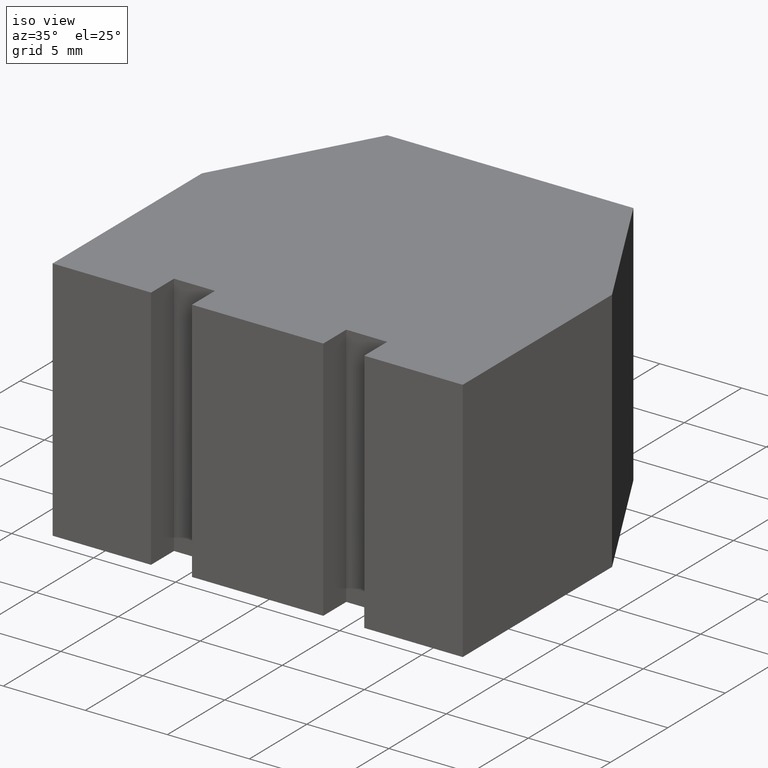
[diagram: clean part render]
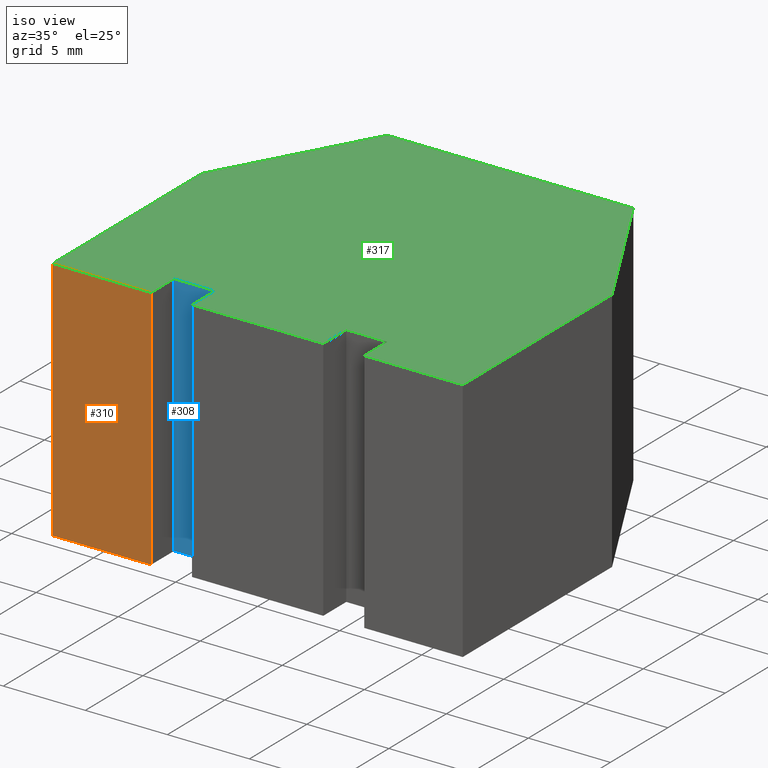
[diagram: same view with three faces highlighted in distinct colors, each labeled with its STEP entity id]
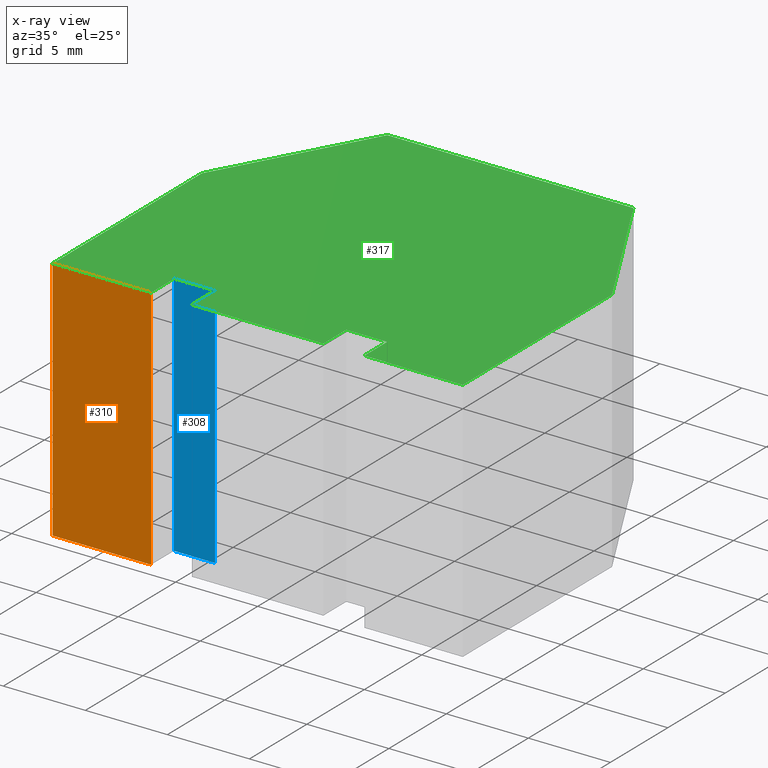
[diagram: x-ray of the same camera — body ghosted, the three highlighted faces saturated]
A machine part, iso view with three faces highlighted in distinct colors.
The next image is the same camera in x-ray (body ghosted, the three faces saturated) — at least one of them is partly hidden behind the body in this view.
Their STEP definitions:

[orange] entity #310 — the highlighted planar face has unit normal (0, -1, 0).
#24=FACE_OUTER_BOUND('',#40,.T.);
#40=EDGE_LOOP('',(#244,#245,#246,#247));
#57=LINE('',#455,#99);
#76=LINE('',#492,#118);
#77=LINE('',#495,#119);
#78=LINE('',#496,#120);
#99=VECTOR('',#370,10.);
#118=VECTOR('',#403,10.);
#119=VECTOR('',#406,10.);
#120=VECTOR('',#407,10.);
#141=VERTEX_POINT('',#452);
#142=VERTEX_POINT('',#454);
#153=VERTEX_POINT('',#490);
#154=VERTEX_POINT('',#494);
#169=EDGE_CURVE('',#142,#141,#57,.T.);
#188=EDGE_CURVE('',#153,#141,#76,.T.);
#189=EDGE_CURVE('',#153,#154,#77,.T.);
#190=EDGE_CURVE('',#154,#142,#78,.T.);
#244=ORIENTED_EDGE('',*,*,#189,.T.);
#245=ORIENTED_EDGE('',*,*,#190,.T.);
#246=ORIENTED_EDGE('',*,*,#169,.T.);
#247=ORIENTED_EDGE('',*,*,#188,.F.);
#294=PLANE('',#349);
#310=ADVANCED_FACE('',(#24),#294,.T.);
#349=AXIS2_PLACEMENT_3D('',#493,#404,#405);
#370=DIRECTION('',(1.,0.,0.));
#403=DIRECTION('',(0.,0.,-1.));
#404=DIRECTION('center_axis',(0.,-1.,0.));
#405=DIRECTION('ref_axis',(0.,0.,-1.));
#406=DIRECTION('',(-1.,0.,0.));
#407=DIRECTION('',(0.,0.,-1.));
#452=CARTESIAN_POINT('',(-6.5,0.,-7.5));
#454=CARTESIAN_POINT('',(-12.5,0.,-7.5));
#455=CARTESIAN_POINT('',(-6.5,0.,-7.5));
#490=CARTESIAN_POINT('',(-6.5,0.,7.5));
#492=CARTESIAN_POINT('',(-6.5,0.,0.));
#493=CARTESIAN_POINT('Origin',(-6.5,0.,0.));
#494=CARTESIAN_POINT('',(-12.5,0.,7.5));
#495=CARTESIAN_POINT('',(-6.5,0.,7.5));
#496=CARTESIAN_POINT('',(-12.5,0.,0.));

[blue] entity #308 — the highlighted planar face has unit normal (0, -1, 0).
#22=FACE_OUTER_BOUND('',#38,.T.);
#38=EDGE_LOOP('',(#236,#237,#238,#239));
#55=LINE('',#451,#97);
#72=LINE('',#484,#114);
#73=LINE('',#487,#115);
#74=LINE('',#488,#116);
#97=VECTOR('',#368,10.);
#114=VECTOR('',#395,10.);
#115=VECTOR('',#398,10.);
#116=VECTOR('',#399,10.);
#139=VERTEX_POINT('',#448);
#140=VERTEX_POINT('',#450);
#151=VERTEX_POINT('',#482);
#152=VERTEX_POINT('',#486);
#167=EDGE_CURVE('',#140,#139,#55,.T.);
#184=EDGE_CURVE('',#151,#139,#72,.T.);
#185=EDGE_CURVE('',#151,#152,#73,.T.);
#186=EDGE_CURVE('',#152,#140,#74,.T.);
#236=ORIENTED_EDGE('',*,*,#185,.T.);
#237=ORIENTED_EDGE('',*,*,#186,.T.);
#238=ORIENTED_EDGE('',*,*,#167,.T.);
#239=ORIENTED_EDGE('',*,*,#184,.F.);
#292=PLANE('',#347);
#308=ADVANCED_FACE('',(#22),#292,.T.);
#347=AXIS2_PLACEMENT_3D('',#485,#396,#397);
#368=DIRECTION('',(1.,0.,0.));
#395=DIRECTION('',(0.,0.,-1.));
#396=DIRECTION('center_axis',(0.,-1.,0.));
#397=DIRECTION('ref_axis',(0.,0.,-1.));
#398=DIRECTION('',(-1.,0.,0.));
#399=DIRECTION('',(0.,0.,-1.));
#448=CARTESIAN_POINT('',(-4.,2.,-7.5));
#450=CARTESIAN_POINT('',(-6.5,2.,-7.5));
#451=CARTESIAN_POINT('',(-4.,2.,-7.5));
#482=CARTESIAN_POINT('',(-4.,2.,7.5));
#484=CARTESIAN_POINT('',(-4.,2.,0.));
#485=CARTESIAN_POINT('Origin',(-4.,2.,0.));
#486=CARTESIAN_POINT('',(-6.5,2.,7.5));
#487=CARTESIAN_POINT('',(-4.,2.,7.5));
#488=CARTESIAN_POINT('',(-6.5,2.,0.));

[green] entity #317 — the highlighted planar face has unit normal (0, 0, 1).
#31=FACE_OUTER_BOUND('',#47,.T.);
#47=EDGE_LOOP('',(#272,#273,#274,#275,#276,#277,#278,#279,#280,#281,#282,
#283,#284,#285));
#62=LINE('',#466,#104);
#65=LINE('',#471,#107);
#67=LINE('',#475,#109);
#69=LINE('',#479,#111);
#71=LINE('',#483,#113);
#73=LINE('',#487,#115);
#75=LINE('',#491,#117);
#77=LINE('',#495,#119);
#79=LINE('',#499,#121);
#81=LINE('',#503,#123);
#83=LINE('',#507,#125);
#85=LINE('',#511,#127);
#87=LINE('',#515,#129);
#89=LINE('',#518,#131);
#104=VECTOR('',#377,10.);
#107=VECTOR('',#382,10.);
#109=VECTOR('',#386,10.);
#111=VECTOR('',#390,10.);
#113=VECTOR('',#394,10.);
#115=VECTOR('',#398,10.);
#117=VECTOR('',#402,10.);
#119=VECTOR('',#406,10.);
#121=VECTOR('',#410,10.);
#123=VECTOR('',#414,10.);
#125=VECTOR('',#418,10.);
#127=VECTOR('',#422,10.);
#129=VECTOR('',#426,10.);
#131=VECTOR('',#430,10.);
#146=VERTEX_POINT('',#464);
#147=VERTEX_POINT('',#465);
#148=VERTEX_POINT('',#470);
#149=VERTEX_POINT('',#474);
#150=VERTEX_POINT('',#478);
#151=VERTEX_POINT('',#482);
#152=VERTEX_POINT('',#486);
#153=VERTEX_POINT('',#490);
#154=VERTEX_POINT('',#494);
#155=VERTEX_POINT('',#498);
#156=VERTEX_POINT('',#502);
#157=VERTEX_POINT('',#506);
#158=VERTEX_POINT('',#510);
#159=VERTEX_POINT('',#514);
#174=EDGE_CURVE('',#146,#147,#62,.T.);
#177=EDGE_CURVE('',#147,#148,#65,.T.);
#179=EDGE_CURVE('',#148,#149,#67,.T.);
#181=EDGE_CURVE('',#149,#150,#69,.T.);
#183=EDGE_CURVE('',#150,#151,#71,.T.);
#185=EDGE_CURVE('',#151,#152,#73,.T.);
#187=EDGE_CURVE('',#152,#153,#75,.T.);
#189=EDGE_CURVE('',#153,#154,#77,.T.);
#191=EDGE_CURVE('',#154,#155,#79,.T.);
#193=EDGE_CURVE('',#155,#156,#81,.T.);
#195=EDGE_CURVE('',#156,#157,#83,.T.);
#197=EDGE_CURVE('',#157,#158,#85,.T.);
#199=EDGE_CURVE('',#158,#159,#87,.T.);
#201=EDGE_CURVE('',#159,#146,#89,.T.);
#272=ORIENTED_EDGE('',*,*,#174,.F.);
#273=ORIENTED_EDGE('',*,*,#201,.F.);
#274=ORIENTED_EDGE('',*,*,#199,.F.);
#275=ORIENTED_EDGE('',*,*,#197,.F.);
#276=ORIENTED_EDGE('',*,*,#195,.F.);
#277=ORIENTED_EDGE('',*,*,#193,.F.);
#278=ORIENTED_EDGE('',*,*,#191,.F.);
#279=ORIENTED_EDGE('',*,*,#189,.F.);
#280=ORIENTED_EDGE('',*,*,#187,.F.);
#281=ORIENTED_EDGE('',*,*,#185,.F.);
#282=ORIENTED_EDGE('',*,*,#183,.F.);
#283=ORIENTED_EDGE('',*,*,#181,.F.);
#284=ORIENTED_EDGE('',*,*,#179,.F.);
#285=ORIENTED_EDGE('',*,*,#177,.F.);
#301=PLANE('',#356);
#317=ADVANCED_FACE('',(#31),#301,.T.);
#356=AXIS2_PLACEMENT_3D('',#519,#431,#432);
#377=DIRECTION('',(5.55111512312578E-16,1.,0.));
#382=DIRECTION('',(-1.,0.,0.));
#386=DIRECTION('',(0.,-1.,0.));
#390=DIRECTION('',(-1.,0.,0.));
#394=DIRECTION('',(0.,1.,0.));
#398=DIRECTION('',(-1.,0.,0.));
#402=DIRECTION('',(5.55111512312578E-16,-1.,0.));
#406=DIRECTION('',(-1.,0.,0.));
#410=DIRECTION('',(0.,1.,0.));
#414=DIRECTION('',(0.485642931178632,0.874157276121538,0.));
#418=DIRECTION('',(1.,0.,0.));
#422=DIRECTION('',(0.485642931178632,-0.874157276121538,0.));
#426=DIRECTION('',(0.,-1.,0.));
#430=DIRECTION('',(-1.,0.,0.));
#431=DIRECTION('center_axis',(0.,0.,1.));
#432=DIRECTION('ref_axis',(1.,0.,0.));
#464=CARTESIAN_POINT('',(6.5,0.,7.5));
#465=CARTESIAN_POINT('',(6.5,2.,7.5));
#466=CARTESIAN_POINT('',(6.5,0.,7.5));
#470=CARTESIAN_POINT('',(4.,2.,7.5));
#471=CARTESIAN_POINT('',(6.5,2.,7.5));
#474=CARTESIAN_POINT('',(4.,0.,7.5));
#475=CARTESIAN_POINT('',(4.,2.,7.5));
#478=CARTESIAN_POINT('',(-4.,0.,7.5));
#479=CARTESIAN_POINT('',(4.,0.,7.5));
#482=CARTESIAN_POINT('',(-4.,2.,7.5));
#483=CARTESIAN_POINT('',(-4.,0.,7.5));
#486=CARTESIAN_POINT('',(-6.5,2.,7.5));
#487=CARTESIAN_POINT('',(-4.,2.,7.5));
#490=CARTESIAN_POINT('',(-6.5,0.,7.5));
#491=CARTESIAN_POINT('',(-6.5,2.,7.5));
#494=CARTESIAN_POINT('',(-12.5,0.,7.5));
#495=CARTESIAN_POINT('',(-6.5,0.,7.5));
#498=CARTESIAN_POINT('',(-12.5,13.,7.5));
#499=CARTESIAN_POINT('',(-12.5,0.,7.5));
#502=CARTESIAN_POINT('',(-7.5,22.,7.5));
#503=CARTESIAN_POINT('',(-12.5,13.,7.5));
#506=CARTESIAN_POINT('',(7.5,22.,7.5));
#507=CARTESIAN_POINT('',(-7.5,22.,7.5));
#510=CARTESIAN_POINT('',(12.5,13.,7.5));
#511=CARTESIAN_POINT('',(7.5,22.,7.5));
#514=CARTESIAN_POINT('',(12.5,0.,7.5));
#515=CARTESIAN_POINT('',(12.5,13.,7.5));
#518=CARTESIAN_POINT('',(12.5,0.,7.5));
#519=CARTESIAN_POINT('Origin',(-2.42861286636753E-16,9.27513865783368,7.5));